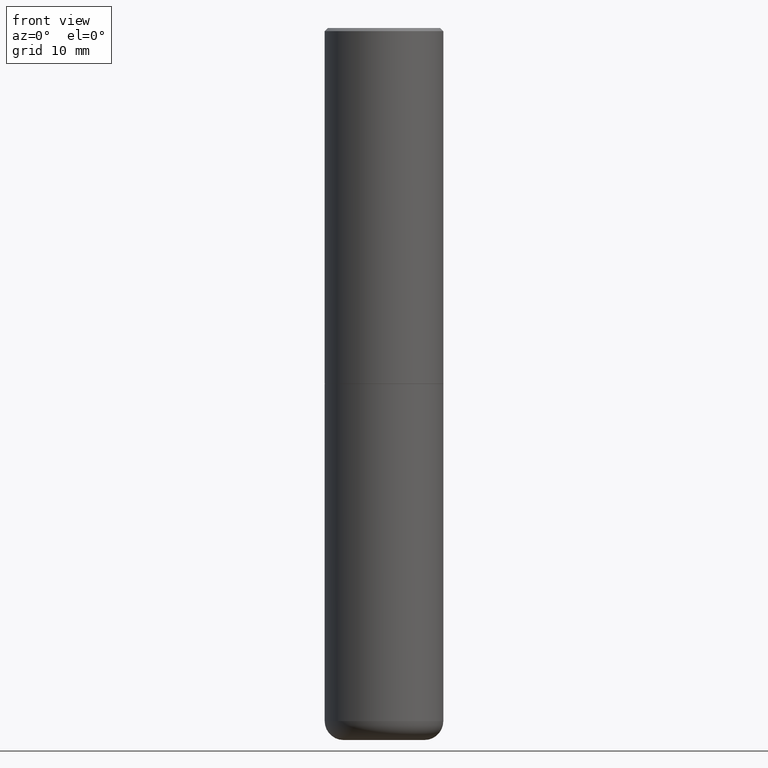
[diagram: clean part render]
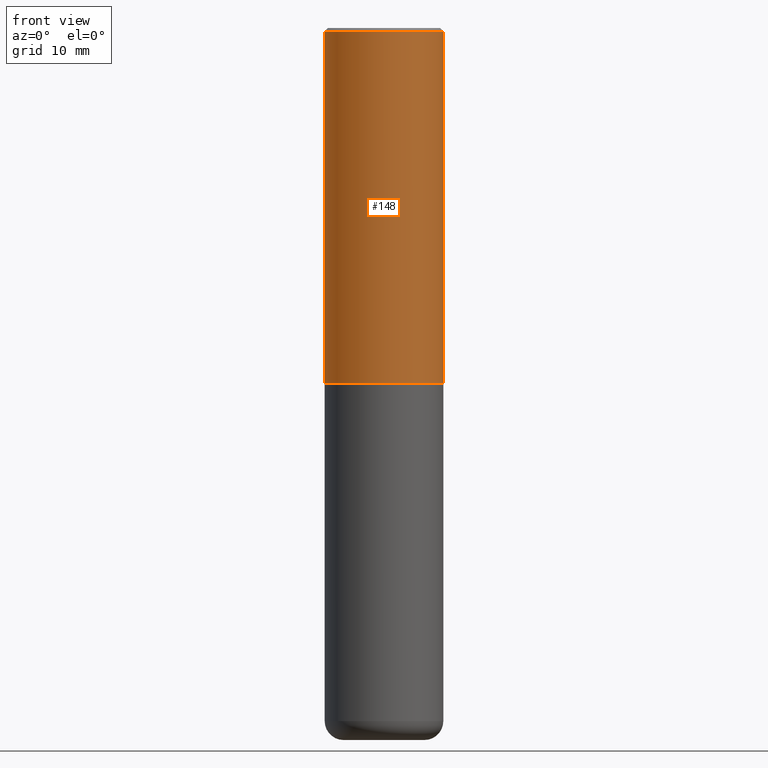
[diagram: same view with one face highlighted and labeled with its STEP entity id]
A machine part, front view. The second image highlights one B-rep face of the part: STEP entity #148.
In plain terms, the highlighted cylindrical surface (partial cylindrical patch) has radius 9.525 mm, axis along (-0, 0, 1).
Its self-contained STEP definition (entity closure, byte-faithful):
#14 = EDGE_CURVE ( 'NONE', #322, #175, #149, .T. ) ;
#18 = AXIS2_PLACEMENT_3D ( 'NONE', #206, #54, #89 ) ;
#34 = CARTESIAN_POINT ( 'NONE',  ( 5.499859345110371740E-29, -7.852341531058233864E-15, -2.249000000000000110 ) ) ;
#41 = ORIENTED_EDGE ( 'NONE', *, *, #309, .T. ) ;
#54 = DIRECTION ( 'NONE',  ( -2.445468806185136597E-29, 3.491481338843145583E-15, 1.000000000000000000 ) ) ;
#75 = DIRECTION ( 'NONE',  ( 1.000000000000000000, -6.982962677686267499E-15, 0.000000000000000000 ) ) ;
#89 = DIRECTION ( 'NONE',  ( 1.000000000000000000, -6.982962677686266711E-15, 4.876176775795935793E-29 ) ) ;
#91 = AXIS2_PLACEMENT_3D ( 'NONE', #159, #255, #282 ) ;
#99 = VERTEX_POINT ( 'NONE', #237 ) ;
#115 = VECTOR ( 'NONE', #119, 39.37007874015748143 ) ;
#119 = DIRECTION ( 'NONE',  ( -2.445468806185136877E-29, 3.491481338843145188E-15, 1.000000000000000000 ) ) ;
#144 = FACE_OUTER_BOUND ( 'NONE', #382, .T. ) ;
#148 = ADVANCED_FACE ( 'NONE', ( #144 ), #364, .T. ) ;
#149 = CIRCLE ( 'NONE', #91, 0.3750000000000001110 ) ;
#156 = CARTESIAN_POINT ( 'NONE',  ( 0.3750000000000002776, -1.047095253519058704E-14, -2.249000000000000110 ) ) ;
#158 = AXIS2_PLACEMENT_3D ( 'NONE', #34, #253, #75 ) ;
#159 = CARTESIAN_POINT ( 'NONE',  ( 4.890937612370294178E-31, -6.982962677686321191E-17, -0.02000000000000008715 ) ) ;
#161 = CARTESIAN_POINT ( 'NONE',  ( 0.3750000000000001110, -2.642516375941188423E-15, -0.02000000000000008715 ) ) ;
#164 = ORIENTED_EDGE ( 'NONE', *, *, #14, .F. ) ;
#165 = EDGE_CURVE ( 'NONE', #99, #322, #242, .T. ) ;
#175 = VERTEX_POINT ( 'NONE', #161 ) ;
#189 = CARTESIAN_POINT ( 'NONE',  ( -0.3750000000000002220, 2.664535259100377275E-15, -1.844600658845590719E-29 ) ) ;
#200 = VECTOR ( 'NONE', #342, 39.37007874015748143 ) ;
#204 = VERTEX_POINT ( 'NONE', #156 ) ;
#206 = CARTESIAN_POINT ( 'NONE',  ( 0.000000000000000000, 0.000000000000000000, 0.000000000000000000 ) ) ;
#237 = CARTESIAN_POINT ( 'NONE',  ( -0.3750000000000002776, -1.296550319817170517E-15, -2.249000000000000110 ) ) ;
#242 = LINE ( 'NONE', #189, #200 ) ;
#253 = DIRECTION ( 'NONE',  ( -2.445468806185136597E-29, 3.491481338843145583E-15, 1.000000000000000000 ) ) ;
#255 = DIRECTION ( 'NONE',  ( -2.445468806185136597E-29, 3.491481338843145583E-15, 1.000000000000000000 ) ) ;
#259 = ORIENTED_EDGE ( 'NONE', *, *, #165, .F. ) ;
#279 = LINE ( 'NONE', #409, #115 ) ;
#281 = CIRCLE ( 'NONE', #158, 0.3750000000000002776 ) ;
#282 = DIRECTION ( 'NONE',  ( 1.000000000000000000, -6.982962677686265922E-15, 0.000000000000000000 ) ) ;
#309 = EDGE_CURVE ( 'NONE', #204, #175, #279, .T. ) ;
#322 = VERTEX_POINT ( 'NONE', #377 ) ;
#342 = DIRECTION ( 'NONE',  ( -2.445468806185136877E-29, 3.491481338843145188E-15, 1.000000000000000000 ) ) ;
#364 = CYLINDRICAL_SURFACE ( 'NONE', #18, 0.3750000000000002220 ) ;
#377 = CARTESIAN_POINT ( 'NONE',  ( -0.3750000000000001110, 2.548781377355487113E-15, -0.02000000000000008715 ) ) ;
#382 = EDGE_LOOP ( 'NONE', ( #259, #417, #41, #164 ) ) ;
#393 = EDGE_CURVE ( 'NONE', #99, #204, #281, .T. ) ;
#409 = CARTESIAN_POINT ( 'NONE',  ( 0.3750000000000002220, -2.618611004132351594E-15, 1.828566290923477043E-29 ) ) ;
#417 = ORIENTED_EDGE ( 'NONE', *, *, #393, .T. ) ;